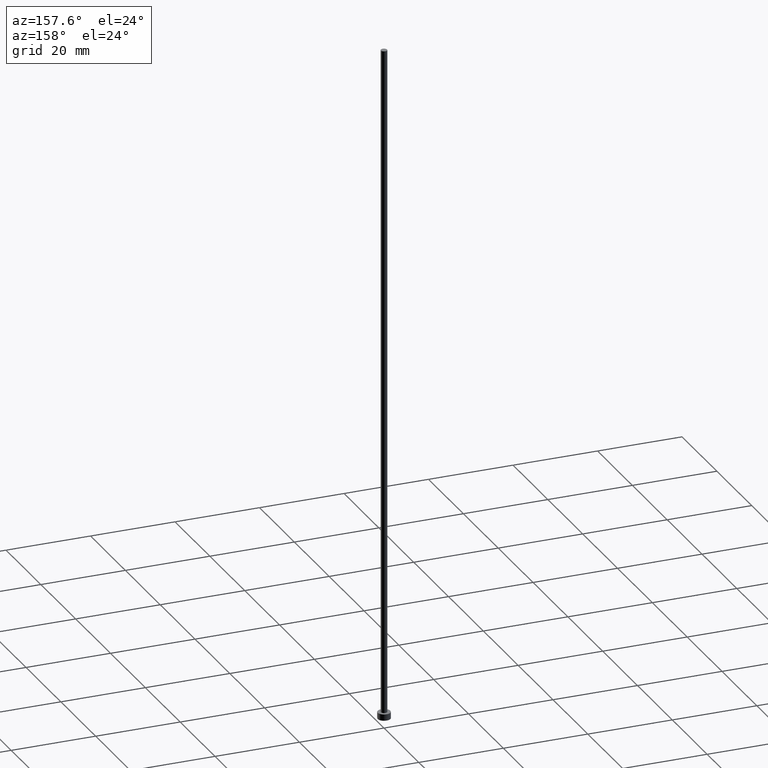
[diagram: clean part render]
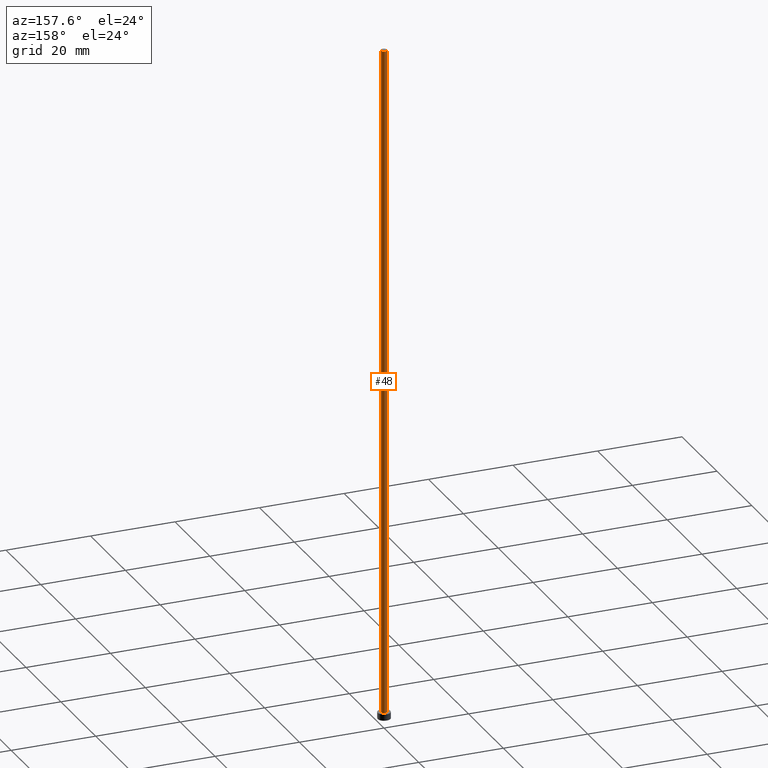
[diagram: same view with one face highlighted and labeled with its STEP entity id]
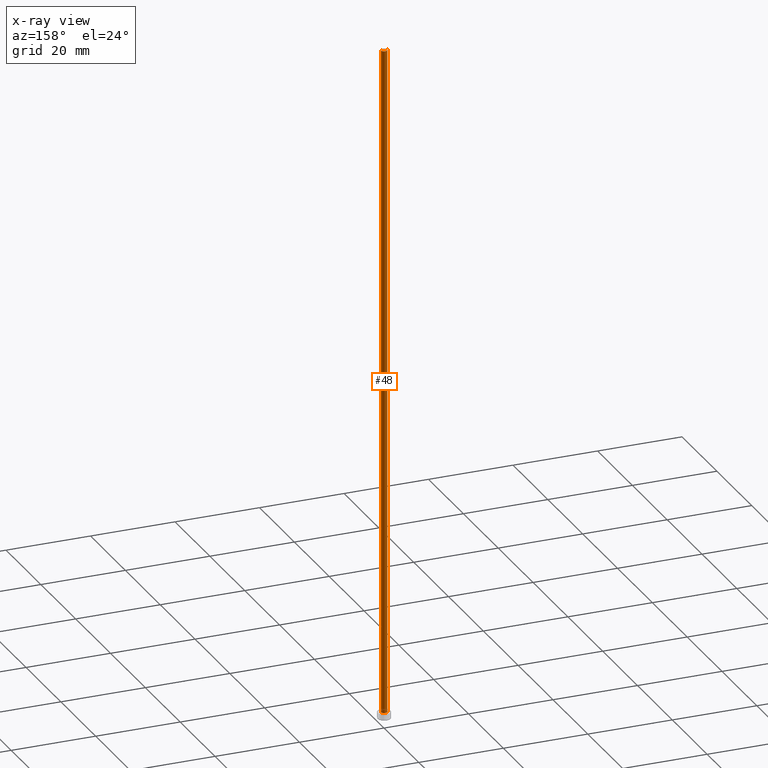
[diagram: x-ray of the same camera — body ghosted, the highlighted face saturated]
A machine part, auxiliary view. The second image highlights one B-rep face of the part: STEP entity #48.
The next image is the same camera in x-ray: the body ghosted, the highlighted face saturated — about 0% of this face is hidden behind the body in this view.
In plain terms, the highlighted cylindrical surface (edge-blend (fillet) strip) has radius 0.75 mm, axis along (-0, -0, -1).
Its self-contained STEP definition (entity closure, byte-faithful):
#7 = CARTESIAN_POINT ( 'NONE',  ( 0.000000000000000000, 0.000000000000000000, 1.500000000000000000 ) ) ;
#10 = AXIS2_PLACEMENT_3D ( 'NONE', #171, #217, #146 ) ;
#19 = DIRECTION ( 'NONE',  ( -0.000000000000000000, -0.000000000000000000, -1.000000000000000000 ) ) ;
#32 = AXIS2_PLACEMENT_3D ( 'NONE', #7, #190, #86 ) ;
#44 = CYLINDRICAL_SURFACE ( 'NONE', #213, 0.7500000000000001110 ) ;
#48 = ADVANCED_FACE ( 'NONE', ( #162 ), #44, .T. ) ;
#49 = LINE ( 'NONE', #194, #173 ) ;
#50 = CARTESIAN_POINT ( 'NONE',  ( -0.7500000000000001110, 0.000000000000000000, 160.0000000000000000 ) ) ;
#51 = LINE ( 'NONE', #137, #151 ) ;
#60 = CIRCLE ( 'NONE', #10, 0.7500000000000001110 ) ;
#62 = DIRECTION ( 'NONE',  ( -1.000000000000000000, 0.000000000000000000, 0.000000000000000000 ) ) ;
#77 = ORIENTED_EDGE ( 'NONE', *, *, #169, .T. ) ;
#79 = ORIENTED_EDGE ( 'NONE', *, *, #160, .F. ) ;
#85 = ORIENTED_EDGE ( 'NONE', *, *, #193, .T. ) ;
#86 = DIRECTION ( 'NONE',  ( 1.000000000000000000, 0.000000000000000000, 0.000000000000000000 ) ) ;
#101 = DIRECTION ( 'NONE',  ( -0.000000000000000000, -0.000000000000000000, -1.000000000000000000 ) ) ;
#102 = CARTESIAN_POINT ( 'NONE',  ( -0.7500000000000001110, 0.000000000000000000, 1.500000000000000000 ) ) ;
#119 = VERTEX_POINT ( 'NONE', #211 ) ;
#121 = CARTESIAN_POINT ( 'NONE',  ( 0.000000000000000000, 0.000000000000000000, 160.0000000000000000 ) ) ;
#133 = VERTEX_POINT ( 'NONE', #50 ) ;
#137 = CARTESIAN_POINT ( 'NONE',  ( 0.7500000000000001110, 9.184850993605150903E-17, 160.0000000000000000 ) ) ;
#146 = DIRECTION ( 'NONE',  ( 1.000000000000000000, 0.000000000000000000, 0.000000000000000000 ) ) ;
#151 = VECTOR ( 'NONE', #19, 1000.000000000000000 ) ;
#160 = EDGE_CURVE ( 'NONE', #119, #133, #60, .T. ) ;
#162 = FACE_OUTER_BOUND ( 'NONE', #185, .T. ) ;
#169 = EDGE_CURVE ( 'NONE', #119, #228, #51, .T. ) ;
#171 = CARTESIAN_POINT ( 'NONE',  ( 0.000000000000000000, 0.000000000000000000, 160.0000000000000000 ) ) ;
#173 = VECTOR ( 'NONE', #177, 1000.000000000000000 ) ;
#174 = CARTESIAN_POINT ( 'NONE',  ( 0.7500000000000001110, 9.184850993605150903E-17, 1.500000000000000000 ) ) ;
#177 = DIRECTION ( 'NONE',  ( -0.000000000000000000, -0.000000000000000000, -1.000000000000000000 ) ) ;
#185 = EDGE_LOOP ( 'NONE', ( #79, #77, #85, #239 ) ) ;
#190 = DIRECTION ( 'NONE',  ( 0.000000000000000000, 0.000000000000000000, 1.000000000000000000 ) ) ;
#193 = EDGE_CURVE ( 'NONE', #228, #245, #202, .T. ) ;
#194 = CARTESIAN_POINT ( 'NONE',  ( -0.7500000000000001110, 0.000000000000000000, 160.0000000000000000 ) ) ;
#202 = CIRCLE ( 'NONE', #32, 0.7500000000000001110 ) ;
#208 = EDGE_CURVE ( 'NONE', #133, #245, #49, .T. ) ;
#211 = CARTESIAN_POINT ( 'NONE',  ( 0.7500000000000001110, 9.184850993605150903E-17, 160.0000000000000000 ) ) ;
#213 = AXIS2_PLACEMENT_3D ( 'NONE', #121, #101, #62 ) ;
#217 = DIRECTION ( 'NONE',  ( 0.000000000000000000, 0.000000000000000000, 1.000000000000000000 ) ) ;
#228 = VERTEX_POINT ( 'NONE', #174 ) ;
#239 = ORIENTED_EDGE ( 'NONE', *, *, #208, .F. ) ;
#245 = VERTEX_POINT ( 'NONE', #102 ) ;